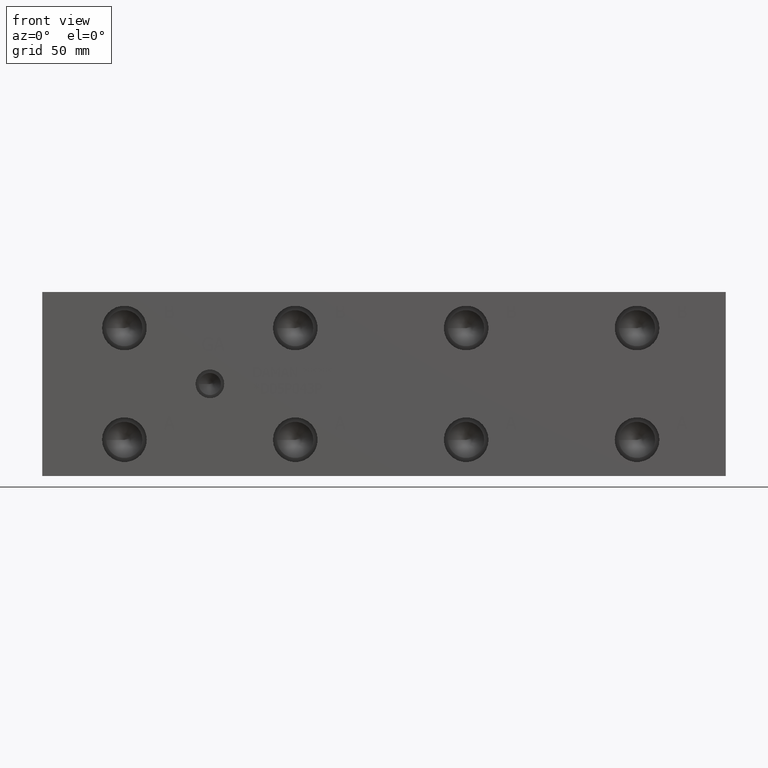
[diagram: clean part render]
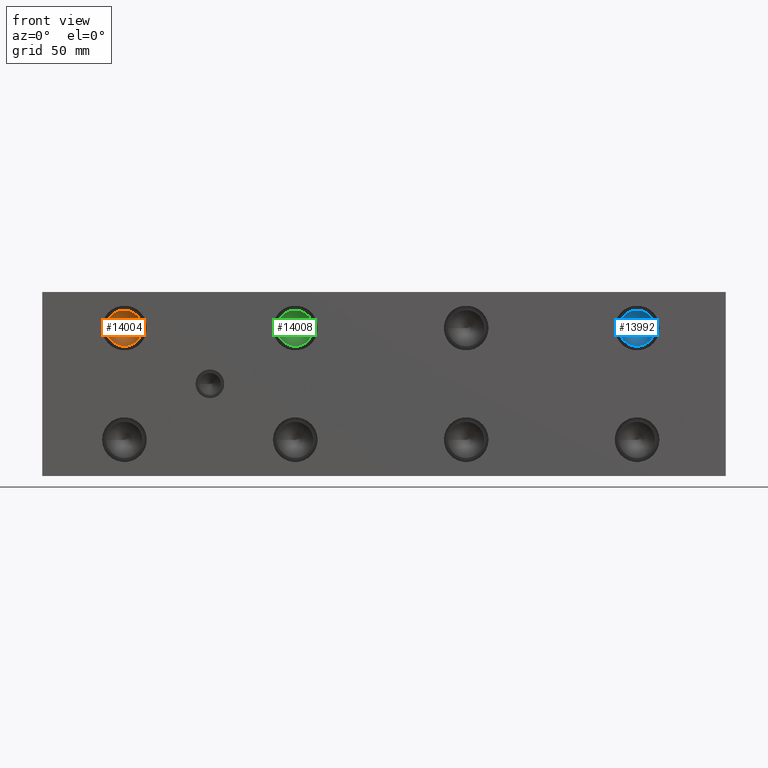
[diagram: same view with three faces highlighted in distinct colors, each labeled with its STEP entity id]
A machine part, front view with three faces highlighted in distinct colors.
Their STEP definitions:

[orange] entity #14004 — the highlighted conical surface has half-angle 60 deg.
#108=CONICAL_SURFACE('',#14664,4.3688,1.0471975511966);
#413=CIRCLE('',#14665,8.7376);
#414=CIRCLE('',#14666,8.7376);
#1704=FACE_OUTER_BOUND('',#2515,.T.);
#2515=EDGE_LOOP('',(#11811,#11812,#11813,#11814));
#3888=LINE('',#23604,#5183);
#5183=VECTOR('',#17239,4.3688);
#6394=VERTEX_POINT('',#23600);
#6395=VERTEX_POINT('',#23601);
#6396=VERTEX_POINT('',#23603);
#8272=EDGE_CURVE('',#6394,#6395,#413,.T.);
#8273=EDGE_CURVE('',#6395,#6396,#3888,.T.);
#8274=EDGE_CURVE('',#6395,#6394,#414,.T.);
#11811=ORIENTED_EDGE('',*,*,#8272,.T.);
#11812=ORIENTED_EDGE('',*,*,#8273,.T.);
#11813=ORIENTED_EDGE('',*,*,#8273,.F.);
#11814=ORIENTED_EDGE('',*,*,#8274,.T.);
#14004=ADVANCED_FACE('',(#1704),#108,.F.);
#14664=AXIS2_PLACEMENT_3D('',#23599,#17235,#17236);
#14665=AXIS2_PLACEMENT_3D('',#23602,#17237,#17238);
#14666=AXIS2_PLACEMENT_3D('',#23605,#17240,#17241);
#17235=DIRECTION('center_axis',(0.,-1.,0.));
#17236=DIRECTION('ref_axis',(1.,0.,0.));
#17237=DIRECTION('center_axis',(0.,-1.,0.));
#17238=DIRECTION('ref_axis',(1.,0.,0.));
#17239=DIRECTION('',(0.866025403784439,0.5,1.06057523872491E-16));
#17240=DIRECTION('center_axis',(0.,-1.,0.));
#17241=DIRECTION('ref_axis',(1.,0.,0.));
#23599=CARTESIAN_POINT('Origin',(39.6748,18.3937978560356,71.4248));
#23600=CARTESIAN_POINT('',(48.4124,15.87147,71.4248));
#23601=CARTESIAN_POINT('',(30.9372,15.87147,71.4248));
#23602=CARTESIAN_POINT('Origin',(39.6748,15.87147,71.4248));
#23603=CARTESIAN_POINT('',(39.6748,20.9161257120713,71.4248));
#23604=CARTESIAN_POINT('',(35.306,18.3937978560356,71.4248));
#23605=CARTESIAN_POINT('Origin',(39.6748,15.87147,71.4248));

[blue] entity #13992 — the highlighted conical surface has half-angle 60 deg.
#105=CONICAL_SURFACE('',#14637,4.3688,1.0471975511966);
#398=CIRCLE('',#14638,8.7376);
#399=CIRCLE('',#14639,8.7376);
#1692=FACE_OUTER_BOUND('',#2500,.T.);
#2500=EDGE_LOOP('',(#11757,#11758,#11759,#11760));
#3879=LINE('',#23550,#5174);
#5174=VECTOR('',#17176,4.3688);
#6376=VERTEX_POINT('',#23546);
#6377=VERTEX_POINT('',#23547);
#6378=VERTEX_POINT('',#23549);
#8248=EDGE_CURVE('',#6376,#6377,#398,.T.);
#8249=EDGE_CURVE('',#6377,#6378,#3879,.T.);
#8250=EDGE_CURVE('',#6377,#6376,#399,.T.);
#11757=ORIENTED_EDGE('',*,*,#8248,.T.);
#11758=ORIENTED_EDGE('',*,*,#8249,.T.);
#11759=ORIENTED_EDGE('',*,*,#8249,.F.);
#11760=ORIENTED_EDGE('',*,*,#8250,.T.);
#13992=ADVANCED_FACE('',(#1692),#105,.F.);
#14637=AXIS2_PLACEMENT_3D('',#23545,#17172,#17173);
#14638=AXIS2_PLACEMENT_3D('',#23548,#17174,#17175);
#14639=AXIS2_PLACEMENT_3D('',#23551,#17177,#17178);
#17172=DIRECTION('center_axis',(0.,-1.,0.));
#17173=DIRECTION('ref_axis',(1.,0.,0.));
#17174=DIRECTION('center_axis',(0.,-1.,0.));
#17175=DIRECTION('ref_axis',(1.,0.,0.));
#17176=DIRECTION('',(0.866025403784439,0.5,1.06057523872491E-16));
#17177=DIRECTION('center_axis',(0.,-1.,0.));
#17178=DIRECTION('ref_axis',(1.,0.,0.));
#23545=CARTESIAN_POINT('Origin',(287.3248,18.3937978560356,71.4248));
#23546=CARTESIAN_POINT('',(296.0624,15.87147,71.4248));
#23547=CARTESIAN_POINT('',(278.5872,15.87147,71.4248));
#23548=CARTESIAN_POINT('Origin',(287.3248,15.87147,71.4248));
#23549=CARTESIAN_POINT('',(287.3248,20.9161257120713,71.4248));
#23550=CARTESIAN_POINT('',(282.956,18.3937978560356,71.4248));
#23551=CARTESIAN_POINT('Origin',(287.3248,15.87147,71.4248));

[green] entity #14008 — the highlighted conical surface has half-angle 60 deg.
#109=CONICAL_SURFACE('',#14673,4.3688,1.0471975511966);
#418=CIRCLE('',#14674,8.7376);
#419=CIRCLE('',#14675,8.7376);
#1708=FACE_OUTER_BOUND('',#2520,.T.);
#2520=EDGE_LOOP('',(#11829,#11830,#11831,#11832));
#3891=LINE('',#23622,#5186);
#5186=VECTOR('',#17260,4.3688);
#6400=VERTEX_POINT('',#23618);
#6401=VERTEX_POINT('',#23619);
#6402=VERTEX_POINT('',#23621);
#8280=EDGE_CURVE('',#6400,#6401,#418,.T.);
#8281=EDGE_CURVE('',#6401,#6402,#3891,.T.);
#8282=EDGE_CURVE('',#6401,#6400,#419,.T.);
#11829=ORIENTED_EDGE('',*,*,#8280,.T.);
#11830=ORIENTED_EDGE('',*,*,#8281,.T.);
#11831=ORIENTED_EDGE('',*,*,#8281,.F.);
#11832=ORIENTED_EDGE('',*,*,#8282,.T.);
#14008=ADVANCED_FACE('',(#1708),#109,.F.);
#14673=AXIS2_PLACEMENT_3D('',#23617,#17256,#17257);
#14674=AXIS2_PLACEMENT_3D('',#23620,#17258,#17259);
#14675=AXIS2_PLACEMENT_3D('',#23623,#17261,#17262);
#17256=DIRECTION('center_axis',(0.,-1.,0.));
#17257=DIRECTION('ref_axis',(1.,0.,0.));
#17258=DIRECTION('center_axis',(0.,-1.,0.));
#17259=DIRECTION('ref_axis',(1.,0.,0.));
#17260=DIRECTION('',(0.866025403784439,0.5,1.06057523872491E-16));
#17261=DIRECTION('center_axis',(0.,-1.,0.));
#17262=DIRECTION('ref_axis',(1.,0.,0.));
#23617=CARTESIAN_POINT('Origin',(122.2248,18.3937978560356,71.4248));
#23618=CARTESIAN_POINT('',(130.9624,15.87147,71.4248));
#23619=CARTESIAN_POINT('',(113.4872,15.87147,71.4248));
#23620=CARTESIAN_POINT('Origin',(122.2248,15.87147,71.4248));
#23621=CARTESIAN_POINT('',(122.2248,20.9161257120713,71.4248));
#23622=CARTESIAN_POINT('',(117.856,18.3937978560356,71.4248));
#23623=CARTESIAN_POINT('Origin',(122.2248,15.87147,71.4248));